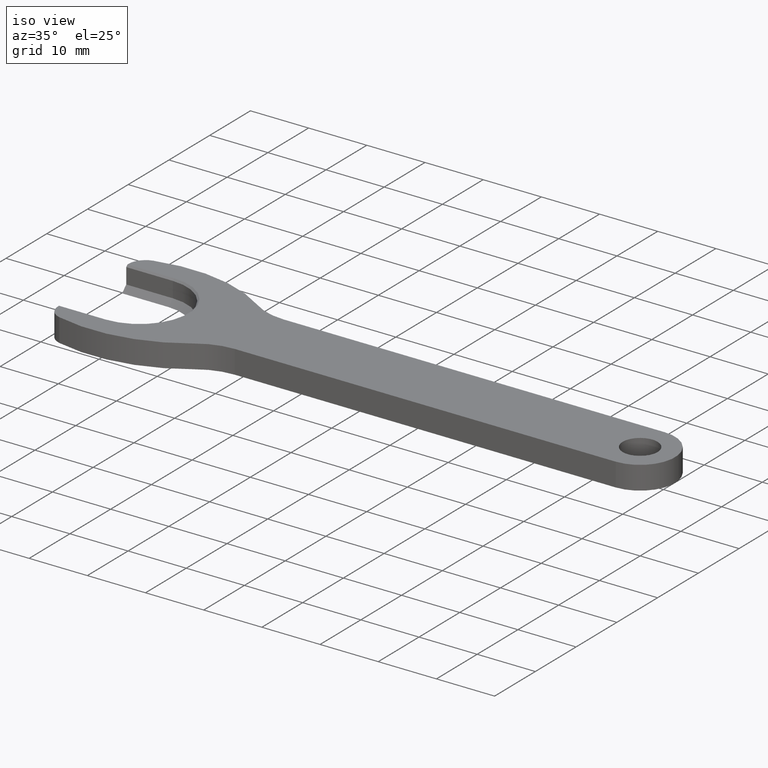
[diagram: clean part render]
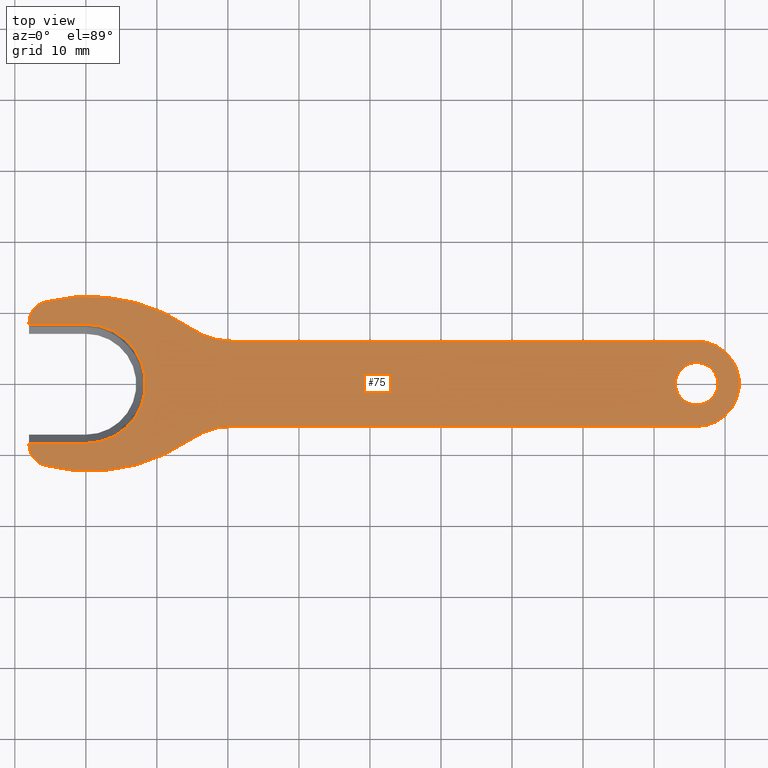
[diagram: tour spotlight — one face highlighted and labeled with its STEP entity id]
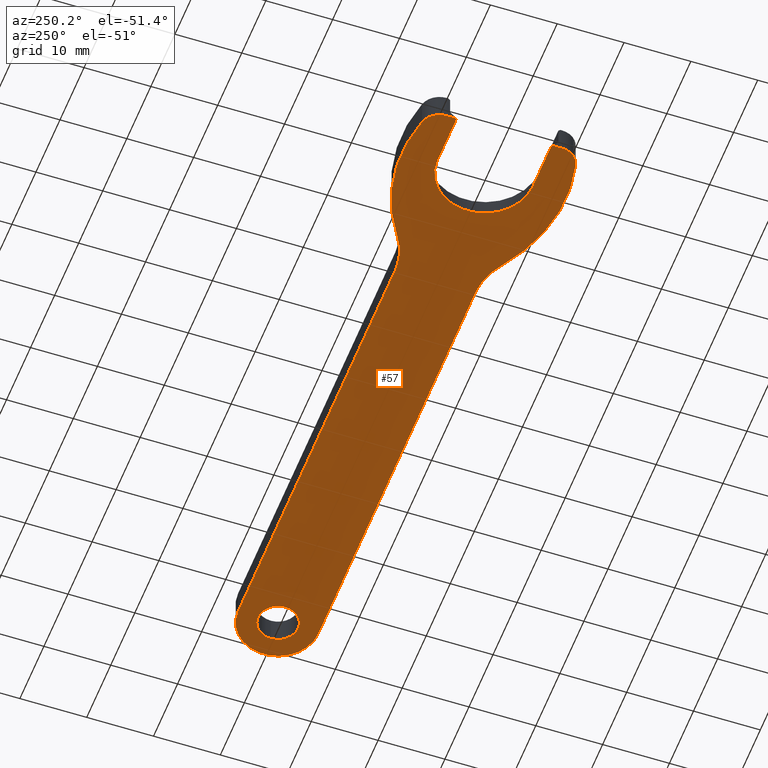
[diagram: tour spotlight — one face highlighted and labeled with its STEP entity id]
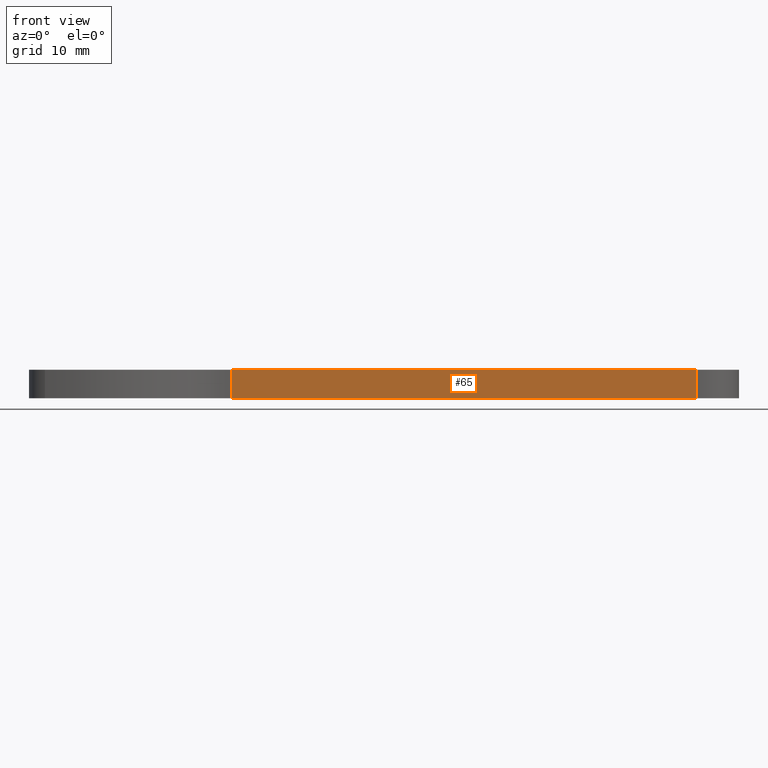
[diagram: tour spotlight — one face highlighted and labeled with its STEP entity id]
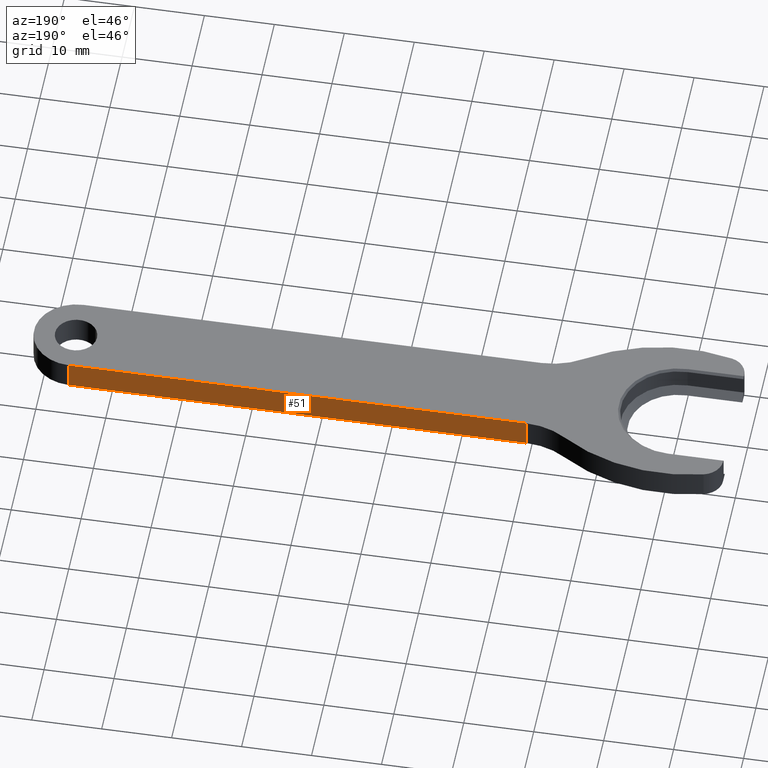
[diagram: tour spotlight — one face highlighted and labeled with its STEP entity id]
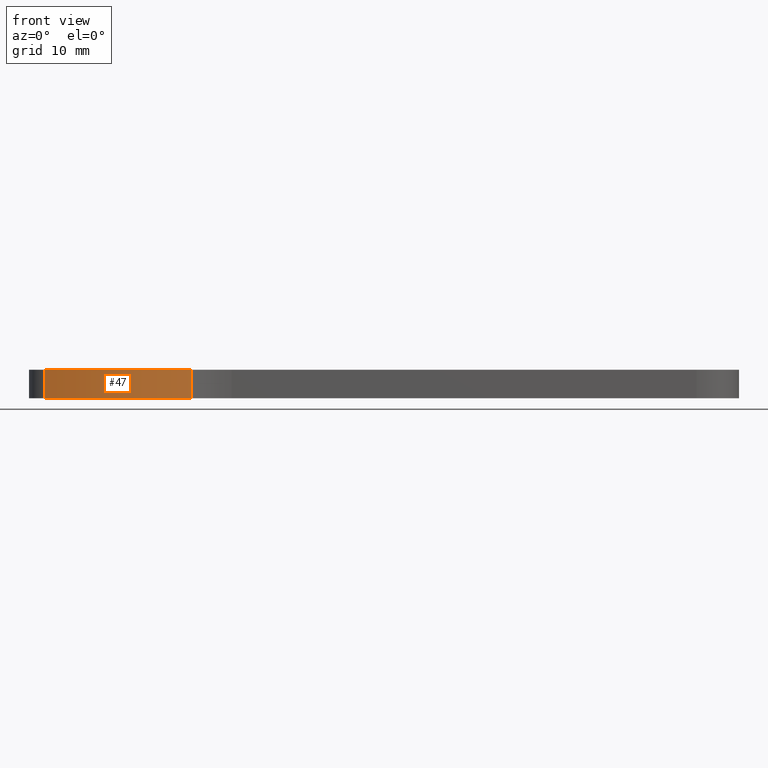
[diagram: tour spotlight — one face highlighted and labeled with its STEP entity id]
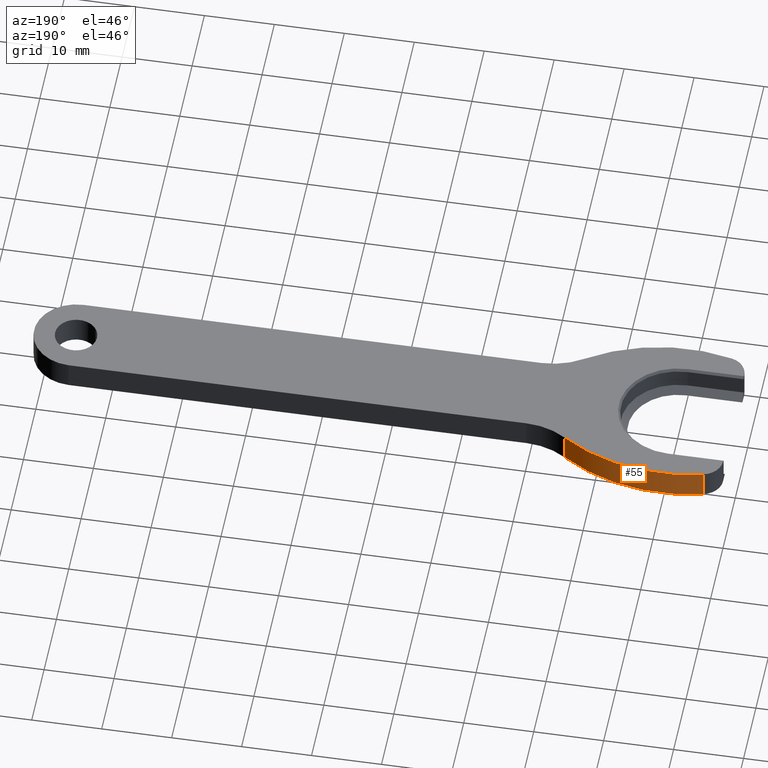
[diagram: tour spotlight — one face highlighted and labeled with its STEP entity id]
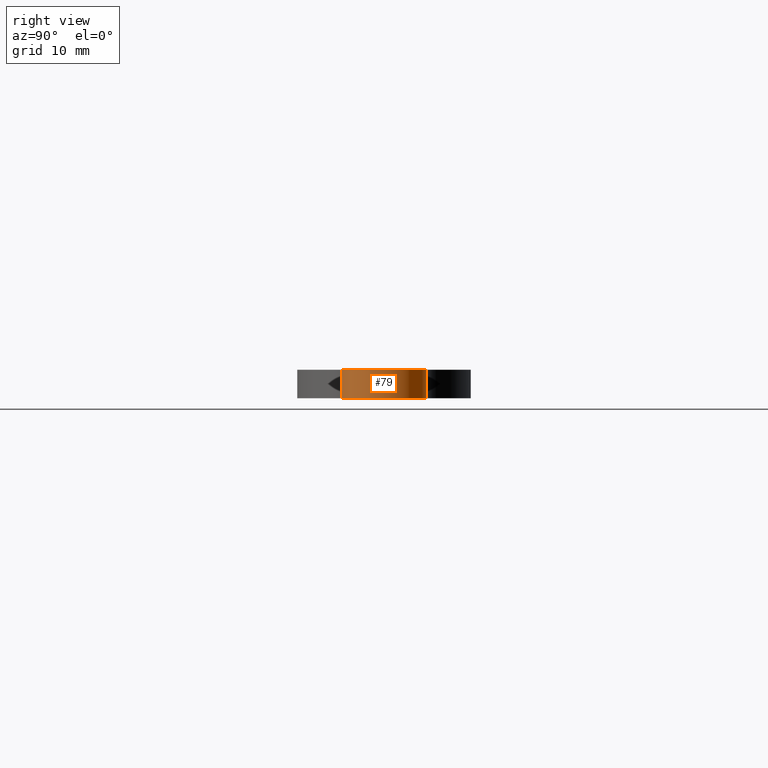
[diagram: tour spotlight — one face highlighted and labeled with its STEP entity id]
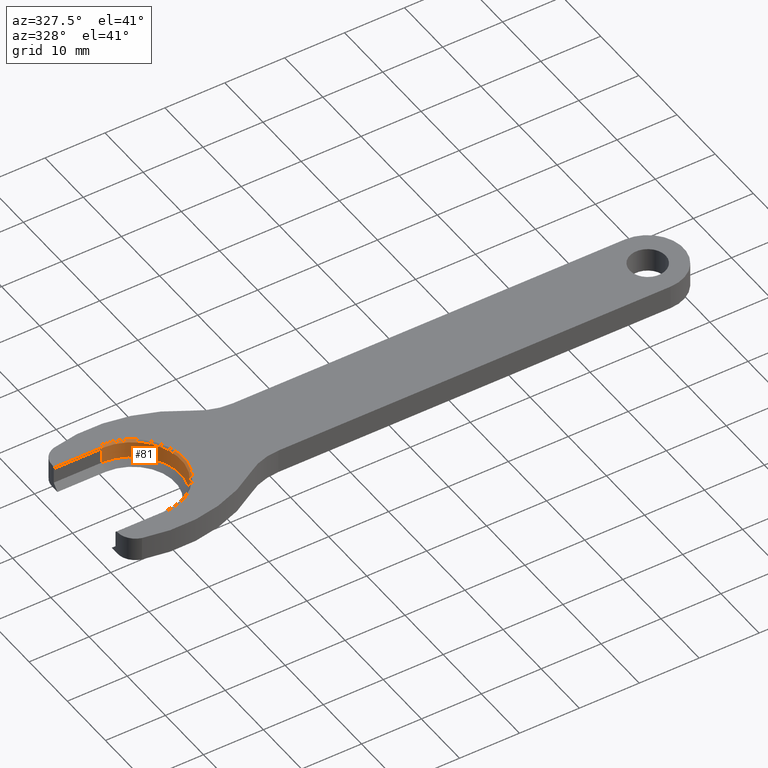
[diagram: tour spotlight — one face highlighted and labeled with its STEP entity id]
A machine part: a face-by-face anatomy tour. The part has 23 B-rep faces; the first image is the clean iso view, then the 8 largest visible faces are spotlighted one at a time (largest first), each with its STEP entity span.

Face 1 — top view, entity #75. In plain terms, the highlighted planar face has unit normal (0, 0, 1).
Definition (entity closure, byte-faithful):
#75 = ADVANCED_FACE( '', ( #154, #155 ), #156, .T. );
#154 = FACE_OUTER_BOUND( '', #233, .T. );
#155 = FACE_BOUND( '', #234, .T. );
#156 = PLANE( '', #235 );
#233 = EDGE_LOOP( '', ( #385, #386, #387, #388, #389, #390, #391, #392, #393, #394, #395, #396, #397, #398 ) );
#234 = EDGE_LOOP( '', ( #399 ) );
#235 = AXIS2_PLACEMENT_3D( '', #400, #401, #402 );
#385 = ORIENTED_EDGE( '', *, *, #520, .F. );
#386 = ORIENTED_EDGE( '', *, *, #508, .T. );
#387 = ORIENTED_EDGE( '', *, *, #529, .T. );
#388 = ORIENTED_EDGE( '', *, *, #530, .T. );
#389 = ORIENTED_EDGE( '', *, *, #531, .F. );
#390 = ORIENTED_EDGE( '', *, *, #485, .T. );
#391 = ORIENTED_EDGE( '', *, *, #470, .F. );
#392 = ORIENTED_EDGE( '', *, *, #511, .F. );
#393 = ORIENTED_EDGE( '', *, *, #517, .F. );
#394 = ORIENTED_EDGE( '', *, *, #532, .F. );
#395 = ORIENTED_EDGE( '', *, *, #482, .F. );
#396 = ORIENTED_EDGE( '', *, *, #533, .F. );
#397 = ORIENTED_EDGE( '', *, *, #491, .F. );
#398 = ORIENTED_EDGE( '', *, *, #523, .T. );
#399 = ORIENTED_EDGE( '', *, *, #525, .F. );
#400 = CARTESIAN_POINT( '', ( 20.5327232297558, 16.0000000000000, 2.00000000000000 ) );
#401 = DIRECTION( '', ( 0.000000000000000, 0.000000000000000, 1.00000000000000 ) );
#402 = DIRECTION( '', ( 1.00000000000000, 0.000000000000000, 0.000000000000000 ) );
#470 = EDGE_CURVE( '', #551, #552, #553, .T. );
#482 = EDGE_CURVE( '', #572, #574, #575, .T. );
#485 = EDGE_CURVE( '', #578, #552, #579, .T. );
#491 = EDGE_CURVE( '', #587, #589, #590, .T. );
#508 = EDGE_CURVE( '', #611, #615, #617, .T. );
#511 = EDGE_CURVE( '', #619, #551, #621, .T. );
#517 = EDGE_CURVE( '', #627, #619, #629, .T. );
#520 = EDGE_CURVE( '', #611, #632, #633, .T. );
#523 = EDGE_CURVE( '', #587, #632, #636, .T. );
#525 = EDGE_CURVE( '', #638, #638, #639, .T. );
#529 = EDGE_CURVE( '', #615, #643, #644, .F. );
#530 = EDGE_CURVE( '', #643, #645, #646, .T. );
#531 = EDGE_CURVE( '', #578, #645, #647, .T. );
#532 = EDGE_CURVE( '', #574, #627, #648, .T. );
#533 = EDGE_CURVE( '', #589, #572, #649, .T. );
#551 = VERTEX_POINT( '', #670 );
#552 = VERTEX_POINT( '', #671 );
#553 = CIRCLE( '', #672, 25.0000000000000 );
#572 = VERTEX_POINT( '', #698 );
#574 = VERTEX_POINT( '', #701 );
#575 = LINE( '', #702, #703 );
#578 = VERTEX_POINT( '', #707 );
#579 = CIRCLE( '', #708, 3.00000000000000 );
#587 = VERTEX_POINT( '', #717 );
#589 = VERTEX_POINT( '', #720 );
#590 = CIRCLE( '', #721, 25.0000000000000 );
#611 = VERTEX_POINT( '', #747 );
#615 = VERTEX_POINT( '', #753 );
#617 = LINE( '', #756, #757 );
#619 = VERTEX_POINT( '', #759 );
#621 = CIRCLE( '', #762, 10.0000000000000 );
#627 = VERTEX_POINT( '', #769 );
#629 = LINE( '', #772, #773 );
#632 = VERTEX_POINT( '', #777 );
#633 = LINE( '', #778, #779 );
#636 = CIRCLE( '', #783, 3.00000000000000 );
#638 = VERTEX_POINT( '', #785 );
#639 = CIRCLE( '', #786, 3.00000000000000 );
#643 = VERTEX_POINT( '', #791 );
#644 = CIRCLE( '', #792, 8.40000000000000 );
#645 = VERTEX_POINT( '', #793 );
#646 = LINE( '', #794, #795 );
#647 = LINE( '', #796, #797 );
#648 = CIRCLE( '', #798, 6.00000000000000 );
#649 = CIRCLE( '', #799, 10.0000000000000 );
#670 = CARTESIAN_POINT( '', ( 14.8090880212542, -7.80000000000000, 2.00000000000000 ) );
#671 = CARTESIAN_POINT( '', ( -5.75000000000000, -11.5061459137964, 2.00000000000000 ) );
#672 = AXIS2_PLACEMENT_3D( '', #826, #827, #828 );
#698 = CARTESIAN_POINT( '', ( 20.5327232297558, 6.00000000000000, 2.00000000000000 ) );
#701 = CARTESIAN_POINT( '', ( 86.0000000000000, 6.00000000000000, 2.00000000000000 ) );
#702 = CARTESIAN_POINT( '', ( 20.5327232297558, 6.00000000000000, 2.00000000000000 ) );
#703 = VECTOR( '', #840, 1000.00000000000 );
#707 = CARTESIAN_POINT( '', ( -8.00000000000000, -8.60140840414081, 2.00000000000000 ) );
#708 = AXIS2_PLACEMENT_3D( '', #842, #843, #844 );
#717 = CARTESIAN_POINT( '', ( -5.75000000000000, 11.5061459137964, 2.00000000000000 ) );
#720 = CARTESIAN_POINT( '', ( 14.8090880212542, 7.80000000000000, 2.00000000000000 ) );
#721 = AXIS2_PLACEMENT_3D( '', #853, #854, #855 );
#747 = CARTESIAN_POINT( '', ( -8.00000000000000, 8.40000000000000, 2.00000000000000 ) );
#753 = CARTESIAN_POINT( '', ( 0.000000000000000, 8.40000000000000, 2.00000000000000 ) );
#756 = CARTESIAN_POINT( '', ( 20.5327232297558, 8.40000000000000, 2.00000000000000 ) );
#757 = VECTOR( '', #882, 1000.00000000000 );
#759 = CARTESIAN_POINT( '', ( 20.5327232297559, -6.00000000000000, 2.00000000000000 ) );
#762 = AXIS2_PLACEMENT_3D( '', #884, #885, #886 );
#769 = CARTESIAN_POINT( '', ( 86.0000000000000, -6.00000000000000, 2.00000000000000 ) );
#772 = CARTESIAN_POINT( '', ( 86.0000000000000, -6.00000000000000, 2.00000000000000 ) );
#773 = VECTOR( '', #892, 1000.00000000000 );
#777 = CARTESIAN_POINT( '', ( -8.00000000000000, 8.60140840414080, 2.00000000000000 ) );
#778 = CARTESIAN_POINT( '', ( -8.00000000000000, 10.8106358910175, 2.00000000000000 ) );
#779 = VECTOR( '', #894, 1000.00000000000 );
#783 = AXIS2_PLACEMENT_3D( '', #896, #897, #898 );
#785 = CARTESIAN_POINT( '', ( 89.0000000000000, 0.000000000000000, 2.00000000000000 ) );
#786 = AXIS2_PLACEMENT_3D( '', #899, #900, #901 );
#791 = CARTESIAN_POINT( '', ( 1.48789671989419E-015, -8.40000000000000, 2.00000000000000 ) );
#792 = AXIS2_PLACEMENT_3D( '', #903, #904, #905 );
#793 = CARTESIAN_POINT( '', ( -8.00000000000000, -8.40000000000000, 2.00000000000000 ) );
#794 = CARTESIAN_POINT( '', ( 20.5327232297558, -8.40000000000000, 2.00000000000000 ) );
#795 = VECTOR( '', #906, 1000.00000000000 );
#796 = CARTESIAN_POINT( '', ( -8.00000000000000, -7.10000000000000, 2.00000000000000 ) );
#797 = VECTOR( '', #907, 1000.00000000000 );
#798 = AXIS2_PLACEMENT_3D( '', #908, #909, #910 );
#799 = AXIS2_PLACEMENT_3D( '', #911, #912, #913 );
#826 = CARTESIAN_POINT( '', ( 0.500000000000000, 12.7000000000000, 2.00000000000000 ) );
#827 = DIRECTION( '', ( 0.000000000000000, 0.000000000000000, -1.00000000000000 ) );
#828 = DIRECTION( '', ( 1.00000000000000, 0.000000000000000, 0.000000000000000 ) );
#840 = DIRECTION( '', ( 1.00000000000000, -1.32487829153546E-016, 0.000000000000000 ) );
#842 = CARTESIAN_POINT( '', ( -5.00000000000000, -8.60140840414081, 2.00000000000000 ) );
#843 = DIRECTION( '', ( 0.000000000000000, 0.000000000000000, 1.00000000000000 ) );
#844 = DIRECTION( '', ( 1.00000000000000, 0.000000000000000, 0.000000000000000 ) );
#853 = CARTESIAN_POINT( '', ( 0.500000000000000, -12.7000000000000, 2.00000000000000 ) );
#854 = DIRECTION( '', ( 0.000000000000000, 0.000000000000000, -1.00000000000000 ) );
#855 = DIRECTION( '', ( 1.00000000000000, 0.000000000000000, 0.000000000000000 ) );
#882 = DIRECTION( '', ( 1.00000000000000, 0.000000000000000, 0.000000000000000 ) );
#884 = CARTESIAN_POINT( '', ( 20.5327232297559, -16.0000000000000, 2.00000000000000 ) );
#885 = DIRECTION( '', ( 0.000000000000000, 0.000000000000000, 1.00000000000000 ) );
#886 = DIRECTION( '', ( 1.00000000000000, 0.000000000000000, 0.000000000000000 ) );
#892 = DIRECTION( '', ( -1.00000000000000, 5.29951316614185E-017, 0.000000000000000 ) );
#894 = DIRECTION( '', ( -4.67500322566309E-016, 1.00000000000000, 0.000000000000000 ) );
#896 = CARTESIAN_POINT( '', ( -5.00000000000000, 8.60140840414080, 2.00000000000000 ) );
#897 = DIRECTION( '', ( 0.000000000000000, 0.000000000000000, 1.00000000000000 ) );
#898 = DIRECTION( '', ( 1.00000000000000, 0.000000000000000, 0.000000000000000 ) );
#899 = CARTESIAN_POINT( '', ( 86.0000000000000, 0.000000000000000, 2.00000000000000 ) );
#900 = DIRECTION( '', ( 0.000000000000000, 0.000000000000000, 1.00000000000000 ) );
#901 = DIRECTION( '', ( 1.00000000000000, 0.000000000000000, 0.000000000000000 ) );
#903 = CARTESIAN_POINT( '', ( 0.000000000000000, 0.000000000000000, 2.00000000000000 ) );
#904 = DIRECTION( '', ( 0.000000000000000, 0.000000000000000, 1.00000000000000 ) );
#905 = DIRECTION( '', ( 1.00000000000000, 0.000000000000000, 0.000000000000000 ) );
#906 = DIRECTION( '', ( -1.00000000000000, 0.000000000000000, 0.000000000000000 ) );
#907 = DIRECTION( '', ( 4.67500322566309E-016, 1.00000000000000, 0.000000000000000 ) );
#908 = CARTESIAN_POINT( '', ( 86.0000000000000, 0.000000000000000, 2.00000000000000 ) );
#909 = DIRECTION( '', ( 0.000000000000000, 0.000000000000000, -1.00000000000000 ) );
#910 = DIRECTION( '', ( -1.00000000000000, 0.000000000000000, 0.000000000000000 ) );
#911 = CARTESIAN_POINT( '', ( 20.5327232297558, 16.0000000000000, 2.00000000000000 ) );
#912 = DIRECTION( '', ( 0.000000000000000, 0.000000000000000, 1.00000000000000 ) );
#913 = DIRECTION( '', ( 1.00000000000000, 0.000000000000000, 0.000000000000000 ) );

Face 2 — auxiliary view, entity #57. In plain terms, the highlighted planar face has unit normal (0, 0, 1).
Definition (entity closure, byte-faithful):
#57 = ADVANCED_FACE( '', ( #125, #126 ), #127, .F. );
#125 = FACE_BOUND( '', #204, .T. );
#126 = FACE_OUTER_BOUND( '', #205, .T. );
#127 = PLANE( '', #206 );
#204 = EDGE_LOOP( '', ( #302 ) );
#205 = EDGE_LOOP( '', ( #303, #304, #305, #306, #307, #308, #309, #310, #311, #312, #313, #314, #315, #316 ) );
#206 = AXIS2_PLACEMENT_3D( '', #317, #318, #319 );
#302 = ORIENTED_EDGE( '', *, *, #494, .T. );
#303 = ORIENTED_EDGE( '', *, *, #472, .T. );
#304 = ORIENTED_EDGE( '', *, *, #487, .T. );
#305 = ORIENTED_EDGE( '', *, *, #495, .T. );
#306 = ORIENTED_EDGE( '', *, *, #496, .T. );
#307 = ORIENTED_EDGE( '', *, *, #497, .T. );
#308 = ORIENTED_EDGE( '', *, *, #476, .T. );
#309 = ORIENTED_EDGE( '', *, *, #498, .T. );
#310 = ORIENTED_EDGE( '', *, *, #499, .T. );
#311 = ORIENTED_EDGE( '', *, *, #489, .T. );
#312 = ORIENTED_EDGE( '', *, *, #500, .T. );
#313 = ORIENTED_EDGE( '', *, *, #480, .T. );
#314 = ORIENTED_EDGE( '', *, *, #501, .T. );
#315 = ORIENTED_EDGE( '', *, *, #502, .T. );
#316 = ORIENTED_EDGE( '', *, *, #503, .T. );
#317 = CARTESIAN_POINT( '', ( 20.5327232297558, 16.0000000000000, -2.00000000000000 ) );
#318 = DIRECTION( '', ( 0.000000000000000, 0.000000000000000, 1.00000000000000 ) );
#319 = DIRECTION( '', ( 1.00000000000000, 0.000000000000000, 0.000000000000000 ) );
#472 = EDGE_CURVE( '', #556, #554, #557, .T. );
#476 = EDGE_CURVE( '', #563, #560, #564, .T. );
#480 = EDGE_CURVE( '', #569, #570, #571, .T. );
#487 = EDGE_CURVE( '', #554, #580, #582, .F. );
#489 = EDGE_CURVE( '', #584, #585, #586, .T. );
#494 = EDGE_CURVE( '', #593, #593, #594, .T. );
#495 = EDGE_CURVE( '', #580, #595, #596, .T. );
#496 = EDGE_CURVE( '', #595, #597, #598, .T. );
#497 = EDGE_CURVE( '', #597, #563, #599, .T. );
#498 = EDGE_CURVE( '', #560, #600, #601, .T. );
#499 = EDGE_CURVE( '', #600, #584, #602, .F. );
#500 = EDGE_CURVE( '', #585, #569, #603, .T. );
#501 = EDGE_CURVE( '', #570, #604, #605, .T. );
#502 = EDGE_CURVE( '', #604, #606, #607, .T. );
#503 = EDGE_CURVE( '', #606, #556, #608, .T. );
#554 = VERTEX_POINT( '', #673 );
#556 = VERTEX_POINT( '', #676 );
#557 = CIRCLE( '', #677, 25.0000000000000 );
#560 = VERTEX_POINT( '', #681 );
#563 = VERTEX_POINT( '', #685 );
#564 = LINE( '', #686, #687 );
#569 = VERTEX_POINT( '', #694 );
#570 = VERTEX_POINT( '', #695 );
#571 = LINE( '', #696, #697 );
#580 = VERTEX_POINT( '', #709 );
#582 = CIRCLE( '', #712, 3.00000000000000 );
#584 = VERTEX_POINT( '', #714 );
#585 = VERTEX_POINT( '', #715 );
#586 = CIRCLE( '', #716, 25.0000000000000 );
#593 = VERTEX_POINT( '', #725 );
#594 = CIRCLE( '', #726, 3.00000000000000 );
#595 = VERTEX_POINT( '', #727 );
#596 = LINE( '', #728, #729 );
#597 = VERTEX_POINT( '', #730 );
#598 = LINE( '', #731, #732 );
#599 = CIRCLE( '', #733, 7.10000000000000 );
#600 = VERTEX_POINT( '', #734 );
#601 = LINE( '', #735, #736 );
#602 = CIRCLE( '', #737, 3.00000000000000 );
#603 = CIRCLE( '', #738, 10.0000000000000 );
#604 = VERTEX_POINT( '', #739 );
#605 = CIRCLE( '', #740, 6.00000000000000 );
#606 = VERTEX_POINT( '', #741 );
#607 = LINE( '', #742, #743 );
#608 = CIRCLE( '', #744, 10.0000000000000 );
#673 = CARTESIAN_POINT( '', ( -5.75000000000000, -11.5061459137964, -2.00000000000000 ) );
#676 = CARTESIAN_POINT( '', ( 14.8090880212542, -7.80000000000000, -2.00000000000000 ) );
#677 = AXIS2_PLACEMENT_3D( '', #830, #831, #832 );
#681 = CARTESIAN_POINT( '', ( -8.00000000000000, 7.10000000000000, -2.00000000000000 ) );
#685 = CARTESIAN_POINT( '', ( 4.61064292214125E-015, 7.10000000000000, -2.00000000000000 ) );
#686 = CARTESIAN_POINT( '', ( -8.00000000000000, 7.10000000000000, -2.00000000000000 ) );
#687 = VECTOR( '', #835, 1000.00000000000 );
#694 = CARTESIAN_POINT( '', ( 20.5327232297558, 6.00000000000000, -2.00000000000000 ) );
#695 = CARTESIAN_POINT( '', ( 86.0000000000000, 6.00000000000000, -2.00000000000000 ) );
#696 = CARTESIAN_POINT( '', ( 20.5327232297558, 6.00000000000000, -2.00000000000000 ) );
#697 = VECTOR( '', #838, 1000.00000000000 );
#709 = CARTESIAN_POINT( '', ( -8.00000000000000, -8.60140840414081, -2.00000000000000 ) );
#712 = AXIS2_PLACEMENT_3D( '', #846, #847, #848 );
#714 = CARTESIAN_POINT( '', ( -5.75000000000000, 11.5061459137964, -2.00000000000000 ) );
#715 = CARTESIAN_POINT( '', ( 14.8090880212542, 7.80000000000000, -2.00000000000000 ) );
#716 = AXIS2_PLACEMENT_3D( '', #849, #850, #851 );
#725 = CARTESIAN_POINT( '', ( 89.0000000000000, 0.000000000000000, -2.00000000000000 ) );
#726 = AXIS2_PLACEMENT_3D( '', #857, #858, #859 );
#727 = CARTESIAN_POINT( '', ( -8.00000000000000, -7.10000000000000, -2.00000000000000 ) );
#728 = CARTESIAN_POINT( '', ( -8.00000000000000, -7.10000000000000, -2.00000000000000 ) );
#729 = VECTOR( '', #860, 1000.00000000000 );
#730 = CARTESIAN_POINT( '', ( 4.17593638271504E-015, -7.10000000000000, -2.00000000000000 ) );
#731 = CARTESIAN_POINT( '', ( 4.17593638271504E-015, -7.10000000000000, -2.00000000000000 ) );
#732 = VECTOR( '', #861, 1000.00000000000 );
#733 = AXIS2_PLACEMENT_3D( '', #862, #863, #864 );
#734 = CARTESIAN_POINT( '', ( -8.00000000000000, 8.60140840414080, -2.00000000000000 ) );
#735 = CARTESIAN_POINT( '', ( -8.00000000000000, 10.8106358910175, -2.00000000000000 ) );
#736 = VECTOR( '', #865, 1000.00000000000 );
#737 = AXIS2_PLACEMENT_3D( '', #866, #867, #868 );
#738 = AXIS2_PLACEMENT_3D( '', #869, #870, #871 );
#739 = CARTESIAN_POINT( '', ( 86.0000000000000, -6.00000000000000, -2.00000000000000 ) );
#740 = AXIS2_PLACEMENT_3D( '', #872, #873, #874 );
#741 = CARTESIAN_POINT( '', ( 20.5327232297559, -6.00000000000000, -2.00000000000000 ) );
#742 = CARTESIAN_POINT( '', ( 86.0000000000000, -6.00000000000000, -2.00000000000000 ) );
#743 = VECTOR( '', #875, 1000.00000000000 );
#744 = AXIS2_PLACEMENT_3D( '', #876, #877, #878 );
#830 = CARTESIAN_POINT( '', ( 0.500000000000000, 12.7000000000000, -2.00000000000000 ) );
#831 = DIRECTION( '', ( 0.000000000000000, 0.000000000000000, -1.00000000000000 ) );
#832 = DIRECTION( '', ( 1.00000000000000, 0.000000000000000, 0.000000000000000 ) );
#835 = DIRECTION( '', ( -1.00000000000000, 0.000000000000000, 0.000000000000000 ) );
#838 = DIRECTION( '', ( 1.00000000000000, -1.32487829153546E-016, 0.000000000000000 ) );
#846 = CARTESIAN_POINT( '', ( -5.00000000000000, -8.60140840414081, -2.00000000000000 ) );
#847 = DIRECTION( '', ( 0.000000000000000, 0.000000000000000, 1.00000000000000 ) );
#848 = DIRECTION( '', ( 1.00000000000000, 0.000000000000000, 0.000000000000000 ) );
#849 = CARTESIAN_POINT( '', ( 0.500000000000000, -12.7000000000000, -2.00000000000000 ) );
#850 = DIRECTION( '', ( 0.000000000000000, 0.000000000000000, -1.00000000000000 ) );
#851 = DIRECTION( '', ( 1.00000000000000, 0.000000000000000, 0.000000000000000 ) );
#857 = CARTESIAN_POINT( '', ( 86.0000000000000, 0.000000000000000, -2.00000000000000 ) );
#858 = DIRECTION( '', ( 0.000000000000000, 0.000000000000000, 1.00000000000000 ) );
#859 = DIRECTION( '', ( 1.00000000000000, 0.000000000000000, 0.000000000000000 ) );
#860 = DIRECTION( '', ( 4.67500322566309E-016, 1.00000000000000, 0.000000000000000 ) );
#861 = DIRECTION( '', ( 1.00000000000000, 2.16840434497101E-016, 0.000000000000000 ) );
#862 = CARTESIAN_POINT( '', ( 3.30643715532042E-015, 0.000000000000000, -2.00000000000000 ) );
#863 = DIRECTION( '', ( 0.000000000000000, 0.000000000000000, 1.00000000000000 ) );
#864 = DIRECTION( '', ( -1.00000000000000, 0.000000000000000, 0.000000000000000 ) );
#865 = DIRECTION( '', ( -4.67500322566309E-016, 1.00000000000000, 0.000000000000000 ) );
#866 = CARTESIAN_POINT( '', ( -5.00000000000000, 8.60140840414080, -2.00000000000000 ) );
#867 = DIRECTION( '', ( 0.000000000000000, 0.000000000000000, 1.00000000000000 ) );
#868 = DIRECTION( '', ( 1.00000000000000, 0.000000000000000, 0.000000000000000 ) );
#869 = CARTESIAN_POINT( '', ( 20.5327232297558, 16.0000000000000, -2.00000000000000 ) );
#870 = DIRECTION( '', ( 0.000000000000000, 0.000000000000000, 1.00000000000000 ) );
#871 = DIRECTION( '', ( 1.00000000000000, 0.000000000000000, 0.000000000000000 ) );
#872 = CARTESIAN_POINT( '', ( 86.0000000000000, 0.000000000000000, -2.00000000000000 ) );
#873 = DIRECTION( '', ( 0.000000000000000, 0.000000000000000, -1.00000000000000 ) );
#874 = DIRECTION( '', ( -1.00000000000000, 0.000000000000000, 0.000000000000000 ) );
#875 = DIRECTION( '', ( -1.00000000000000, 5.29951316614185E-017, 0.000000000000000 ) );
#876 = CARTESIAN_POINT( '', ( 20.5327232297559, -16.0000000000000, -2.00000000000000 ) );
#877 = DIRECTION( '', ( 0.000000000000000, 0.000000000000000, 1.00000000000000 ) );
#878 = DIRECTION( '', ( 1.00000000000000, 0.000000000000000, 0.000000000000000 ) );

Face 3 — front view, entity #65. In plain terms, the highlighted planar face has unit normal (-0, -1, 0).
Definition (entity closure, byte-faithful):
#65 = ADVANCED_FACE( '', ( #138 ), #139, .T. );
#138 = FACE_OUTER_BOUND( '', #217, .T. );
#139 = PLANE( '', #218 );
#217 = EDGE_LOOP( '', ( #345, #346, #347, #348 ) );
#218 = AXIS2_PLACEMENT_3D( '', #349, #350, #351 );
#345 = ORIENTED_EDGE( '', *, *, #502, .F. );
#346 = ORIENTED_EDGE( '', *, *, #516, .F. );
#347 = ORIENTED_EDGE( '', *, *, #517, .T. );
#348 = ORIENTED_EDGE( '', *, *, #510, .T. );
#349 = CARTESIAN_POINT( '', ( 86.0000000000000, -6.00000000000000, 2.00000000000000 ) );
#350 = DIRECTION( '', ( -5.29951316614185E-017, -1.00000000000000, 0.000000000000000 ) );
#351 = DIRECTION( '', ( 1.00000000000000, -5.29951316614185E-017, 0.000000000000000 ) );
#502 = EDGE_CURVE( '', #604, #606, #607, .T. );
#510 = EDGE_CURVE( '', #619, #606, #620, .T. );
#516 = EDGE_CURVE( '', #627, #604, #628, .T. );
#517 = EDGE_CURVE( '', #627, #619, #629, .T. );
#604 = VERTEX_POINT( '', #739 );
#606 = VERTEX_POINT( '', #741 );
#607 = LINE( '', #742, #743 );
#619 = VERTEX_POINT( '', #759 );
#620 = LINE( '', #760, #761 );
#627 = VERTEX_POINT( '', #769 );
#628 = LINE( '', #770, #771 );
#629 = LINE( '', #772, #773 );
#739 = CARTESIAN_POINT( '', ( 86.0000000000000, -6.00000000000000, -2.00000000000000 ) );
#741 = CARTESIAN_POINT( '', ( 20.5327232297559, -6.00000000000000, -2.00000000000000 ) );
#742 = CARTESIAN_POINT( '', ( 86.0000000000000, -6.00000000000000, -2.00000000000000 ) );
#743 = VECTOR( '', #875, 1000.00000000000 );
#759 = CARTESIAN_POINT( '', ( 20.5327232297559, -6.00000000000000, 2.00000000000000 ) );
#760 = CARTESIAN_POINT( '', ( 20.5327232297559, -6.00000000000000, 2.00000000000000 ) );
#761 = VECTOR( '', #883, 1000.00000000000 );
#769 = CARTESIAN_POINT( '', ( 86.0000000000000, -6.00000000000000, 2.00000000000000 ) );
#770 = CARTESIAN_POINT( '', ( 86.0000000000000, -6.00000000000000, 2.00000000000000 ) );
#771 = VECTOR( '', #891, 1000.00000000000 );
#772 = CARTESIAN_POINT( '', ( 86.0000000000000, -6.00000000000000, 2.00000000000000 ) );
#773 = VECTOR( '', #892, 1000.00000000000 );
#875 = DIRECTION( '', ( -1.00000000000000, 5.29951316614185E-017, 0.000000000000000 ) );
#883 = DIRECTION( '', ( 0.000000000000000, 0.000000000000000, -1.00000000000000 ) );
#891 = DIRECTION( '', ( 0.000000000000000, 0.000000000000000, -1.00000000000000 ) );
#892 = DIRECTION( '', ( -1.00000000000000, 5.29951316614185E-017, 0.000000000000000 ) );

Face 4 — auxiliary view, entity #51. In plain terms, the highlighted planar face has unit normal (0, 1, 0).
Definition (entity closure, byte-faithful):
#51 = ADVANCED_FACE( '', ( #116 ), #117, .T. );
#116 = FACE_OUTER_BOUND( '', #195, .T. );
#117 = PLANE( '', #196 );
#195 = EDGE_LOOP( '', ( #278, #279, #280, #281 ) );
#196 = AXIS2_PLACEMENT_3D( '', #282, #283, #284 );
#278 = ORIENTED_EDGE( '', *, *, #480, .F. );
#279 = ORIENTED_EDGE( '', *, *, #481, .F. );
#280 = ORIENTED_EDGE( '', *, *, #482, .T. );
#281 = ORIENTED_EDGE( '', *, *, #483, .T. );
#282 = CARTESIAN_POINT( '', ( 20.5327232297558, 6.00000000000000, 2.00000000000000 ) );
#283 = DIRECTION( '', ( 1.32487829153546E-016, 1.00000000000000, 0.000000000000000 ) );
#284 = DIRECTION( '', ( -1.00000000000000, 1.32487829153546E-016, 0.000000000000000 ) );
#480 = EDGE_CURVE( '', #569, #570, #571, .T. );
#481 = EDGE_CURVE( '', #572, #569, #573, .T. );
#482 = EDGE_CURVE( '', #572, #574, #575, .T. );
#483 = EDGE_CURVE( '', #574, #570, #576, .T. );
#569 = VERTEX_POINT( '', #694 );
#570 = VERTEX_POINT( '', #695 );
#571 = LINE( '', #696, #697 );
#572 = VERTEX_POINT( '', #698 );
#573 = LINE( '', #699, #700 );
#574 = VERTEX_POINT( '', #701 );
#575 = LINE( '', #702, #703 );
#576 = LINE( '', #704, #705 );
#694 = CARTESIAN_POINT( '', ( 20.5327232297558, 6.00000000000000, -2.00000000000000 ) );
#695 = CARTESIAN_POINT( '', ( 86.0000000000000, 6.00000000000000, -2.00000000000000 ) );
#696 = CARTESIAN_POINT( '', ( 20.5327232297558, 6.00000000000000, -2.00000000000000 ) );
#697 = VECTOR( '', #838, 1000.00000000000 );
#698 = CARTESIAN_POINT( '', ( 20.5327232297558, 6.00000000000000, 2.00000000000000 ) );
#699 = CARTESIAN_POINT( '', ( 20.5327232297558, 6.00000000000000, 2.00000000000000 ) );
#700 = VECTOR( '', #839, 1000.00000000000 );
#701 = CARTESIAN_POINT( '', ( 86.0000000000000, 6.00000000000000, 2.00000000000000 ) );
#702 = CARTESIAN_POINT( '', ( 20.5327232297558, 6.00000000000000, 2.00000000000000 ) );
#703 = VECTOR( '', #840, 1000.00000000000 );
#704 = CARTESIAN_POINT( '', ( 86.0000000000000, 6.00000000000000, 2.00000000000000 ) );
#705 = VECTOR( '', #841, 1000.00000000000 );
#838 = DIRECTION( '', ( 1.00000000000000, -1.32487829153546E-016, 0.000000000000000 ) );
#839 = DIRECTION( '', ( 0.000000000000000, 0.000000000000000, -1.00000000000000 ) );
#840 = DIRECTION( '', ( 1.00000000000000, -1.32487829153546E-016, 0.000000000000000 ) );
#841 = DIRECTION( '', ( 0.000000000000000, 0.000000000000000, -1.00000000000000 ) );

Face 5 — front view, entity #47. In plain terms, the highlighted cylindrical surface (partial cylindrical patch) has radius 25 mm, axis along (-0, -0, 1).
Definition (entity closure, byte-faithful):
#47 = ADVANCED_FACE( '', ( #110 ), #111, .T. );
#110 = FACE_OUTER_BOUND( '', #189, .T. );
#111 = CYLINDRICAL_SURFACE( '', #190, 25.0000000000000 );
#189 = EDGE_LOOP( '', ( #262, #263, #264, #265 ) );
#190 = AXIS2_PLACEMENT_3D( '', #266, #267, #268 );
#262 = ORIENTED_EDGE( '', *, *, #470, .T. );
#263 = ORIENTED_EDGE( '', *, *, #471, .T. );
#264 = ORIENTED_EDGE( '', *, *, #472, .F. );
#265 = ORIENTED_EDGE( '', *, *, #473, .F. );
#266 = CARTESIAN_POINT( '', ( 0.500000000000000, 12.7000000000000, 2.00000000000000 ) );
#267 = DIRECTION( '', ( -0.000000000000000, -0.000000000000000, 1.00000000000000 ) );
#268 = DIRECTION( '', ( -1.00000000000000, 0.000000000000000, 0.000000000000000 ) );
#470 = EDGE_CURVE( '', #551, #552, #553, .T. );
#471 = EDGE_CURVE( '', #552, #554, #555, .T. );
#472 = EDGE_CURVE( '', #556, #554, #557, .T. );
#473 = EDGE_CURVE( '', #551, #556, #558, .T. );
#551 = VERTEX_POINT( '', #670 );
#552 = VERTEX_POINT( '', #671 );
#553 = CIRCLE( '', #672, 25.0000000000000 );
#554 = VERTEX_POINT( '', #673 );
#555 = LINE( '', #674, #675 );
#556 = VERTEX_POINT( '', #676 );
#557 = CIRCLE( '', #677, 25.0000000000000 );
#558 = LINE( '', #678, #679 );
#670 = CARTESIAN_POINT( '', ( 14.8090880212542, -7.80000000000000, 2.00000000000000 ) );
#671 = CARTESIAN_POINT( '', ( -5.75000000000000, -11.5061459137964, 2.00000000000000 ) );
#672 = AXIS2_PLACEMENT_3D( '', #826, #827, #828 );
#673 = CARTESIAN_POINT( '', ( -5.75000000000000, -11.5061459137964, -2.00000000000000 ) );
#674 = CARTESIAN_POINT( '', ( -5.75000000000000, -11.5061459137964, 2.00000000000000 ) );
#675 = VECTOR( '', #829, 1000.00000000000 );
#676 = CARTESIAN_POINT( '', ( 14.8090880212542, -7.80000000000000, -2.00000000000000 ) );
#677 = AXIS2_PLACEMENT_3D( '', #830, #831, #832 );
#678 = CARTESIAN_POINT( '', ( 14.8090880212542, -7.80000000000000, 2.00000000000000 ) );
#679 = VECTOR( '', #833, 1000.00000000000 );
#826 = CARTESIAN_POINT( '', ( 0.500000000000000, 12.7000000000000, 2.00000000000000 ) );
#827 = DIRECTION( '', ( 0.000000000000000, 0.000000000000000, -1.00000000000000 ) );
#828 = DIRECTION( '', ( 1.00000000000000, 0.000000000000000, 0.000000000000000 ) );
#829 = DIRECTION( '', ( 0.000000000000000, 0.000000000000000, -1.00000000000000 ) );
#830 = CARTESIAN_POINT( '', ( 0.500000000000000, 12.7000000000000, -2.00000000000000 ) );
#831 = DIRECTION( '', ( 0.000000000000000, 0.000000000000000, -1.00000000000000 ) );
#832 = DIRECTION( '', ( 1.00000000000000, 0.000000000000000, 0.000000000000000 ) );
#833 = DIRECTION( '', ( 0.000000000000000, 0.000000000000000, -1.00000000000000 ) );

Face 6 — auxiliary view, entity #55. In plain terms, the highlighted cylindrical surface (partial cylindrical patch) has radius 25 mm, axis along (-0, -0, 1).
Definition (entity closure, byte-faithful):
#55 = ADVANCED_FACE( '', ( #122 ), #123, .T. );
#122 = FACE_OUTER_BOUND( '', #201, .T. );
#123 = CYLINDRICAL_SURFACE( '', #202, 25.0000000000000 );
#201 = EDGE_LOOP( '', ( #294, #295, #296, #297 ) );
#202 = AXIS2_PLACEMENT_3D( '', #298, #299, #300 );
#294 = ORIENTED_EDGE( '', *, *, #489, .F. );
#295 = ORIENTED_EDGE( '', *, *, #490, .T. );
#296 = ORIENTED_EDGE( '', *, *, #491, .T. );
#297 = ORIENTED_EDGE( '', *, *, #492, .T. );
#298 = CARTESIAN_POINT( '', ( 0.500000000000000, -12.7000000000000, 2.00000000000000 ) );
#299 = DIRECTION( '', ( -0.000000000000000, -0.000000000000000, 1.00000000000000 ) );
#300 = DIRECTION( '', ( -1.00000000000000, 0.000000000000000, 0.000000000000000 ) );
#489 = EDGE_CURVE( '', #584, #585, #586, .T. );
#490 = EDGE_CURVE( '', #584, #587, #588, .F. );
#491 = EDGE_CURVE( '', #587, #589, #590, .T. );
#492 = EDGE_CURVE( '', #589, #585, #591, .T. );
#584 = VERTEX_POINT( '', #714 );
#585 = VERTEX_POINT( '', #715 );
#586 = CIRCLE( '', #716, 25.0000000000000 );
#587 = VERTEX_POINT( '', #717 );
#588 = LINE( '', #718, #719 );
#589 = VERTEX_POINT( '', #720 );
#590 = CIRCLE( '', #721, 25.0000000000000 );
#591 = LINE( '', #722, #723 );
#714 = CARTESIAN_POINT( '', ( -5.75000000000000, 11.5061459137964, -2.00000000000000 ) );
#715 = CARTESIAN_POINT( '', ( 14.8090880212542, 7.80000000000000, -2.00000000000000 ) );
#716 = AXIS2_PLACEMENT_3D( '', #849, #850, #851 );
#717 = CARTESIAN_POINT( '', ( -5.75000000000000, 11.5061459137964, 2.00000000000000 ) );
#718 = CARTESIAN_POINT( '', ( -5.75000000000000, 11.5061459137964, 2.00000000000000 ) );
#719 = VECTOR( '', #852, 1000.00000000000 );
#720 = CARTESIAN_POINT( '', ( 14.8090880212542, 7.80000000000000, 2.00000000000000 ) );
#721 = AXIS2_PLACEMENT_3D( '', #853, #854, #855 );
#722 = CARTESIAN_POINT( '', ( 14.8090880212542, 7.80000000000000, 2.00000000000000 ) );
#723 = VECTOR( '', #856, 1000.00000000000 );
#849 = CARTESIAN_POINT( '', ( 0.500000000000000, -12.7000000000000, -2.00000000000000 ) );
#850 = DIRECTION( '', ( 0.000000000000000, 0.000000000000000, -1.00000000000000 ) );
#851 = DIRECTION( '', ( 1.00000000000000, 0.000000000000000, 0.000000000000000 ) );
#852 = DIRECTION( '', ( 0.000000000000000, 0.000000000000000, -1.00000000000000 ) );
#853 = CARTESIAN_POINT( '', ( 0.500000000000000, -12.7000000000000, 2.00000000000000 ) );
#854 = DIRECTION( '', ( 0.000000000000000, 0.000000000000000, -1.00000000000000 ) );
#855 = DIRECTION( '', ( 1.00000000000000, 0.000000000000000, 0.000000000000000 ) );
#856 = DIRECTION( '', ( 0.000000000000000, 0.000000000000000, -1.00000000000000 ) );

Face 7 — right view, entity #79. In plain terms, the highlighted cylindrical surface (partial cylindrical patch) has radius 6 mm, axis along (-0, -0, 1).
Definition (entity closure, byte-faithful):
#79 = ADVANCED_FACE( '', ( #161 ), #162, .T. );
#161 = FACE_OUTER_BOUND( '', #240, .T. );
#162 = CYLINDRICAL_SURFACE( '', #241, 6.00000000000000 );
#240 = EDGE_LOOP( '', ( #414, #415, #416, #417 ) );
#241 = AXIS2_PLACEMENT_3D( '', #418, #419, #420 );
#414 = ORIENTED_EDGE( '', *, *, #501, .F. );
#415 = ORIENTED_EDGE( '', *, *, #483, .F. );
#416 = ORIENTED_EDGE( '', *, *, #532, .T. );
#417 = ORIENTED_EDGE( '', *, *, #516, .T. );
#418 = CARTESIAN_POINT( '', ( 86.0000000000000, 0.000000000000000, 2.00000000000000 ) );
#419 = DIRECTION( '', ( -0.000000000000000, -0.000000000000000, 1.00000000000000 ) );
#420 = DIRECTION( '', ( -1.00000000000000, 0.000000000000000, 0.000000000000000 ) );
#483 = EDGE_CURVE( '', #574, #570, #576, .T. );
#501 = EDGE_CURVE( '', #570, #604, #605, .T. );
#516 = EDGE_CURVE( '', #627, #604, #628, .T. );
#532 = EDGE_CURVE( '', #574, #627, #648, .T. );
#570 = VERTEX_POINT( '', #695 );
#574 = VERTEX_POINT( '', #701 );
#576 = LINE( '', #704, #705 );
#604 = VERTEX_POINT( '', #739 );
#605 = CIRCLE( '', #740, 6.00000000000000 );
#627 = VERTEX_POINT( '', #769 );
#628 = LINE( '', #770, #771 );
#648 = CIRCLE( '', #798, 6.00000000000000 );
#695 = CARTESIAN_POINT( '', ( 86.0000000000000, 6.00000000000000, -2.00000000000000 ) );
#701 = CARTESIAN_POINT( '', ( 86.0000000000000, 6.00000000000000, 2.00000000000000 ) );
#704 = CARTESIAN_POINT( '', ( 86.0000000000000, 6.00000000000000, 2.00000000000000 ) );
#705 = VECTOR( '', #841, 1000.00000000000 );
#739 = CARTESIAN_POINT( '', ( 86.0000000000000, -6.00000000000000, -2.00000000000000 ) );
#740 = AXIS2_PLACEMENT_3D( '', #872, #873, #874 );
#769 = CARTESIAN_POINT( '', ( 86.0000000000000, -6.00000000000000, 2.00000000000000 ) );
#770 = CARTESIAN_POINT( '', ( 86.0000000000000, -6.00000000000000, 2.00000000000000 ) );
#771 = VECTOR( '', #891, 1000.00000000000 );
#798 = AXIS2_PLACEMENT_3D( '', #908, #909, #910 );
#841 = DIRECTION( '', ( 0.000000000000000, 0.000000000000000, -1.00000000000000 ) );
#872 = CARTESIAN_POINT( '', ( 86.0000000000000, 0.000000000000000, -2.00000000000000 ) );
#873 = DIRECTION( '', ( 0.000000000000000, 0.000000000000000, -1.00000000000000 ) );
#874 = DIRECTION( '', ( -1.00000000000000, 0.000000000000000, 0.000000000000000 ) );
#891 = DIRECTION( '', ( 0.000000000000000, 0.000000000000000, -1.00000000000000 ) );
#908 = CARTESIAN_POINT( '', ( 86.0000000000000, 0.000000000000000, 2.00000000000000 ) );
#909 = DIRECTION( '', ( 0.000000000000000, 0.000000000000000, -1.00000000000000 ) );
#910 = DIRECTION( '', ( -1.00000000000000, 0.000000000000000, 0.000000000000000 ) );

Face 8 — auxiliary view, entity #81. In plain terms, the highlighted cylindrical surface (partial cylindrical patch) has radius 8.1 mm, axis along (-0, -0, -1).
Definition (entity closure, byte-faithful):
#81 = ADVANCED_FACE( '', ( #164 ), #165, .F. );
#164 = FACE_OUTER_BOUND( '', #243, .T. );
#165 = CYLINDRICAL_SURFACE( '', #244, 8.10000000000000 );
#243 = EDGE_LOOP( '', ( #422, #423, #424, #425 ) );
#244 = AXIS2_PLACEMENT_3D( '', #426, #427, #428 );
#422 = ORIENTED_EDGE( '', *, *, #540, .T. );
#423 = ORIENTED_EDGE( '', *, *, #541, .T. );
#424 = ORIENTED_EDGE( '', *, *, #527, .F. );
#425 = ORIENTED_EDGE( '', *, *, #514, .T. );
#426 = CARTESIAN_POINT( '', ( 0.000000000000000, 0.000000000000000, -1.00000000000000 ) );
#427 = DIRECTION( '', ( -0.000000000000000, -0.000000000000000, -1.00000000000000 ) );
#428 = DIRECTION( '', ( 1.00000000000000, 0.000000000000000, 0.000000000000000 ) );
#514 = EDGE_CURVE( '', #565, #623, #625, .T. );
#527 = EDGE_CURVE( '', #565, #613, #641, .T. );
#540 = EDGE_CURVE( '', #623, #658, #659, .T. );
#541 = EDGE_CURVE( '', #658, #613, #660, .T. );
#565 = VERTEX_POINT( '', #688 );
#613 = VERTEX_POINT( '', #750 );
#623 = VERTEX_POINT( '', #764 );
#625 = CIRCLE( '', #767, 8.10000000000000 );
#641 = LINE( '', #788, #789 );
#658 = VERTEX_POINT( '', #811 );
#659 = LINE( '', #812, #813 );
#660 = CIRCLE( '', #814, 8.10000000000000 );
#688 = CARTESIAN_POINT( '', ( 0.000000000000000, 8.10000000000000, -1.00000000000000 ) );
#750 = CARTESIAN_POINT( '', ( 0.000000000000000, 8.10000000000000, 1.70000000000000 ) );
#764 = CARTESIAN_POINT( '', ( 1.48789671989419E-015, -8.10000000000000, -1.00000000000000 ) );
#767 = AXIS2_PLACEMENT_3D( '', #888, #889, #890 );
#788 = CARTESIAN_POINT( '', ( 0.000000000000000, 8.10000000000000, -1.00000000000000 ) );
#789 = VECTOR( '', #902, 1000.00000000000 );
#811 = CARTESIAN_POINT( '', ( 1.48789671989419E-015, -8.10000000000000, 1.70000000000000 ) );
#812 = CARTESIAN_POINT( '', ( 1.48789671989419E-015, -8.10000000000000, -1.00000000000000 ) );
#813 = VECTOR( '', #917, 1000.00000000000 );
#814 = AXIS2_PLACEMENT_3D( '', #918, #919, #920 );
#888 = CARTESIAN_POINT( '', ( 0.000000000000000, 0.000000000000000, -1.00000000000000 ) );
#889 = DIRECTION( '', ( 0.000000000000000, 0.000000000000000, -1.00000000000000 ) );
#890 = DIRECTION( '', ( -1.00000000000000, 0.000000000000000, 0.000000000000000 ) );
#902 = DIRECTION( '', ( 0.000000000000000, 0.000000000000000, 1.00000000000000 ) );
#917 = DIRECTION( '', ( 0.000000000000000, 0.000000000000000, 1.00000000000000 ) );
#918 = CARTESIAN_POINT( '', ( 0.000000000000000, 0.000000000000000, 1.70000000000000 ) );
#919 = DIRECTION( '', ( 0.000000000000000, 0.000000000000000, 1.00000000000000 ) );
#920 = DIRECTION( '', ( 1.00000000000000, 0.000000000000000, 0.000000000000000 ) );